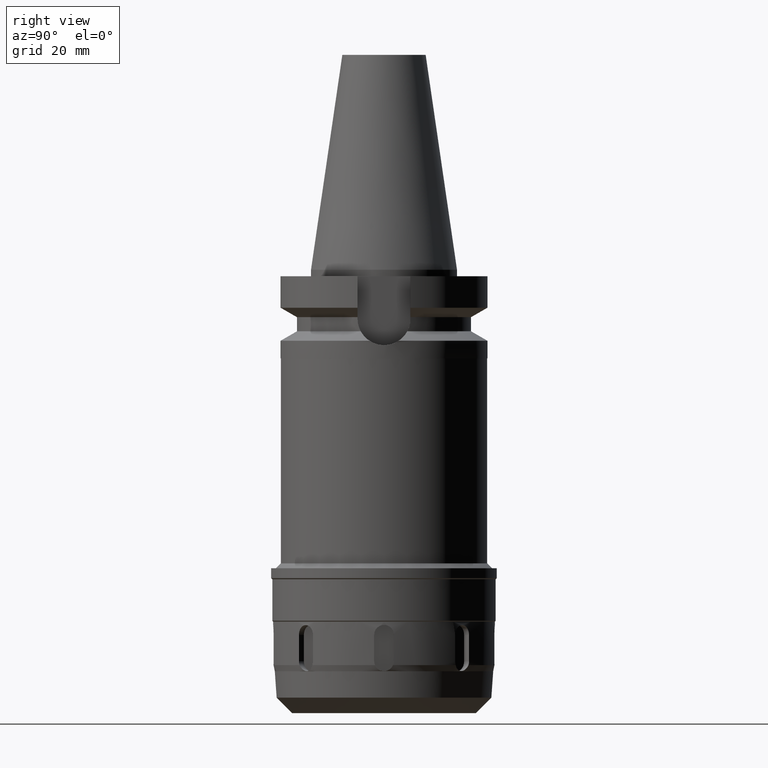
[diagram: clean part render]
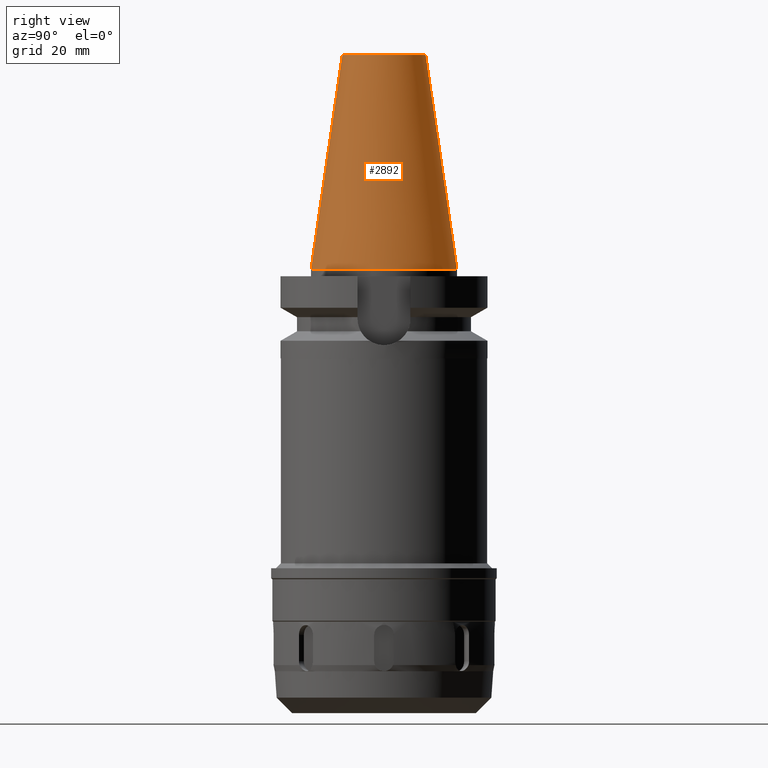
[diagram: same view with one face highlighted and labeled with its STEP entity id]
A machine part, right view. The second image highlights one B-rep face of the part: STEP entity #2892.
In plain terms, the highlighted conical surface has half-angle 8.297 deg.
Its self-contained STEP definition (entity closure, byte-faithful):
#26=CARTESIAN_POINT('',(0.E0,1.625106302469E-14,6.54E1));
#27=DIRECTION('',(0.E0,0.E0,-1.E0));
#28=DIRECTION('',(0.E0,1.E0,0.E0));
#29=AXIS2_PLACEMENT_3D('',#26,#27,#28);
#50=DIRECTION('',(0.E0,-1.443043893540E-1,-9.895333461856E-1));
#51=VECTOR('',#50,6.609175956738E1);
#52=CARTESIAN_POINT('',(0.E0,-1.268766899430E1,6.54E1));
#53=LINE('',#52,#51);
#65=DIRECTION('',(0.E0,1.443043893540E-1,-9.895333461856E-1));
#66=VECTOR('',#65,6.609175956738E1);
#67=CARTESIAN_POINT('',(0.E0,1.268766899430E1,6.54E1));
#68=LINE('',#67,#66);
#72=CARTESIAN_POINT('',(0.E0,1.625106302469E-14,2.842170943040E-14));
#73=DIRECTION('',(0.E0,0.E0,-1.E0));
#74=DIRECTION('',(0.E0,1.E0,0.E0));
#75=AXIS2_PLACEMENT_3D('',#72,#73,#74);
#2486=CARTESIAN_POINT('',(0.E0,-1.268766899430E1,6.54E1));
#2487=CARTESIAN_POINT('',(0.E0,1.268766899430E1,6.54E1));
#2488=VERTEX_POINT('',#2486);
#2489=VERTEX_POINT('',#2487);
#2769=CARTESIAN_POINT('',(0.E0,2.2225E1,6.394884621841E-14));
#2770=VERTEX_POINT('',#2769);
#2771=CARTESIAN_POINT('',(0.E0,-2.2225E1,6.394884621841E-14));
#2772=VERTEX_POINT('',#2771);
#2880=CARTESIAN_POINT('',(0.E0,1.625106302469E-14,3.27E1));
#2881=DIRECTION('',(0.E0,0.E0,-1.E0));
#2882=DIRECTION('',(0.E0,-1.E0,0.E0));
#2883=AXIS2_PLACEMENT_3D('',#2880,#2881,#2882);
#2884=CONICAL_SURFACE('',#2883,1.745633449715E1,8.297E0);
#2885=ORIENTED_EDGE('',*,*,#2870,.T.);
#2887=ORIENTED_EDGE('',*,*,#2886,.T.);
#2888=ORIENTED_EDGE('',*,*,#2873,.F.);
#2889=ORIENTED_EDGE('',*,*,#2854,.F.);
#2890=EDGE_LOOP('',(#2885,#2887,#2888,#2889));
#2891=FACE_OUTER_BOUND('',#2890,.F.);
#30=CIRCLE('',#29,1.268766899430E1);
#76=CIRCLE('',#75,2.2225E1);
#2854=EDGE_CURVE('',#2489,#2488,#30,.T.);
#2870=EDGE_CURVE('',#2489,#2770,#68,.T.);
#2873=EDGE_CURVE('',#2488,#2772,#53,.T.);
#2886=EDGE_CURVE('',#2770,#2772,#76,.T.);
#2892=ADVANCED_FACE('',(#2891),#2884,.T.);